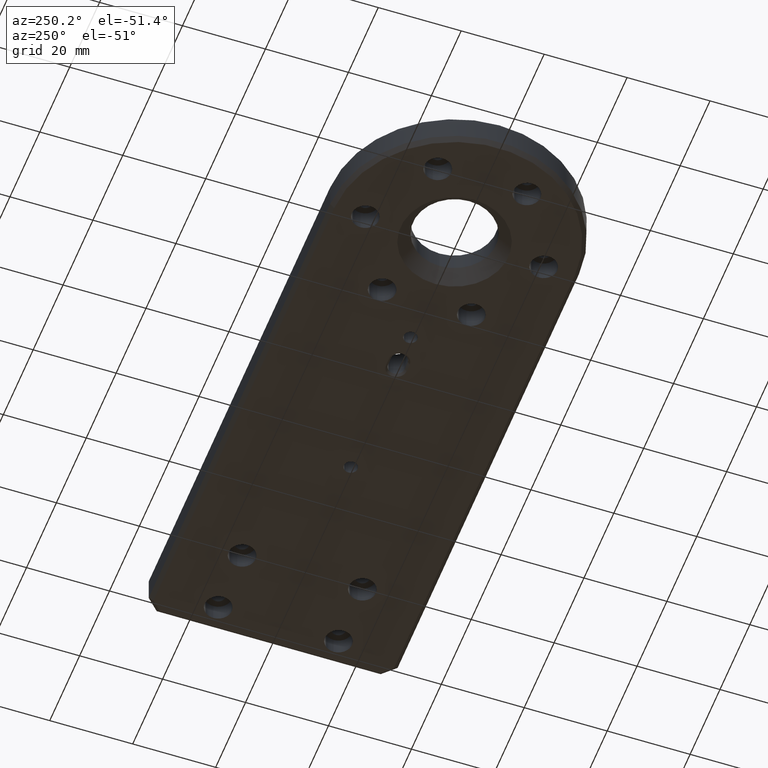
[diagram: clean part render]
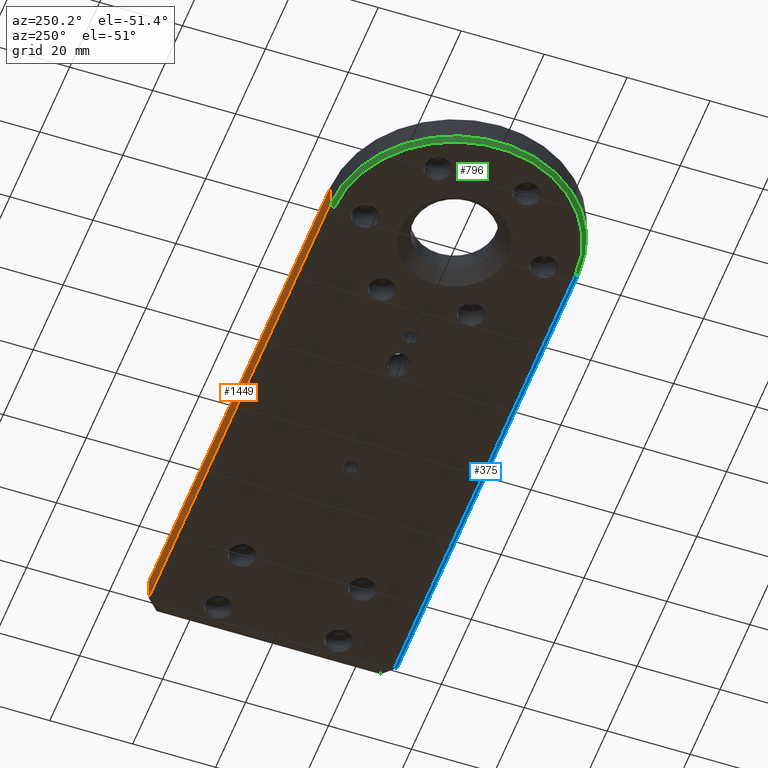
[diagram: same view with three faces highlighted in distinct colors, each labeled with its STEP entity id]
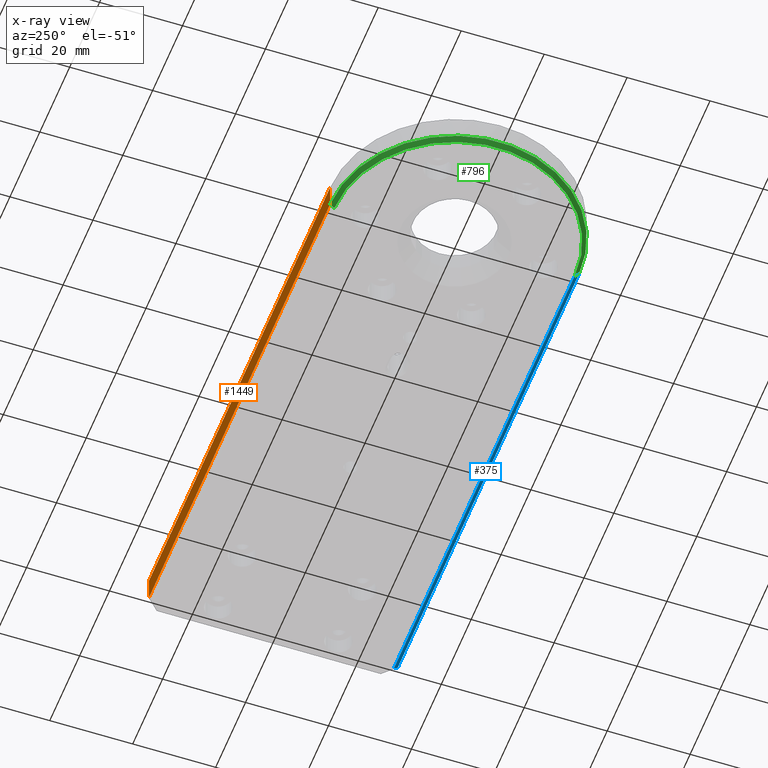
[diagram: x-ray of the same camera — body ghosted, the three highlighted faces saturated]
A machine part, auxiliary view with three faces highlighted in distinct colors.
The next image is the same camera in x-ray (body ghosted, the three faces saturated) — at least one of them is partly hidden behind the body in this view.
Their STEP definitions:

[orange] entity #1449 — the highlighted planar face has unit normal (0, 1, 0).
#435 = ORIENTED_EDGE ( 'NONE', *, *, #2697, .T. ) ;
#528 = DIRECTION ( 'NONE',  ( 1.000000000000000000, 0.0000000000000000000, 0.0000000000000000000 ) ) ;
#617 = ORIENTED_EDGE ( 'NONE', *, *, #3568, .T. ) ;
#993 = CARTESIAN_POINT ( 'NONE',  ( 121.5000000000000000, 30.00000000000000000, -6.999999999999999112 ) ) ;
#1007 = CARTESIAN_POINT ( 'NONE',  ( 121.5000000000000000, 30.00000000000000000, -1.000000000000000888 ) ) ;
#1026 = LINE ( 'NONE', #1903, #3607 ) ;
#1093 = CARTESIAN_POINT ( 'NONE',  ( 1.836970198721029589E-15, 30.00000000000000000, -8.000000000000000000 ) ) ;
#1103 = VECTOR ( 'NONE', #3389, 1000.000000000000000 ) ;
#1449 = ADVANCED_FACE ( 'NONE', ( #1634 ), #2760, .T. ) ;
#1542 = EDGE_CURVE ( 'NONE', #2549, #3305, #2321, .T. ) ;
#1627 = CARTESIAN_POINT ( 'NONE',  ( 1.836970198721029589E-15, 30.00000000000000000, -1.000000000000000888 ) ) ;
#1634 = FACE_OUTER_BOUND ( 'NONE', #2050, .T. ) ;
#1691 = VERTEX_POINT ( 'NONE', #3497 ) ;
#1853 = VECTOR ( 'NONE', #528, 1000.000000000000000 ) ;
#1903 = CARTESIAN_POINT ( 'NONE',  ( 1.836970198721029589E-15, 30.00000000000000000, -6.999999999999999112 ) ) ;
#2050 = EDGE_LOOP ( 'NONE', ( #2065, #617, #3009, #435 ) ) ;
#2065 = ORIENTED_EDGE ( 'NONE', *, *, #2886, .T. ) ;
#2085 = AXIS2_PLACEMENT_3D ( 'NONE', #1093, #2199, #2778 ) ;
#2199 = DIRECTION ( 'NONE',  ( 0.0000000000000000000, 1.000000000000000000, 0.0000000000000000000 ) ) ;
#2223 = CARTESIAN_POINT ( 'NONE',  ( 1.836970198721029589E-15, 30.00000000000000000, -8.000000000000000000 ) ) ;
#2321 = LINE ( 'NONE', #2595, #1103 ) ;
#2549 = VERTEX_POINT ( 'NONE', #1007 ) ;
#2568 = DIRECTION ( 'NONE',  ( 0.0000000000000000000, 0.0000000000000000000, 1.000000000000000000 ) ) ;
#2595 = CARTESIAN_POINT ( 'NONE',  ( 121.5000000000000000, 30.00000000000000000, -8.000000000000000000 ) ) ;
#2697 = EDGE_CURVE ( 'NONE', #3305, #1691, #1026, .T. ) ;
#2704 = DIRECTION ( 'NONE',  ( -1.000000000000000000, 0.0000000000000000000, 0.0000000000000000000 ) ) ;
#2760 = PLANE ( 'NONE',  #2085 ) ;
#2778 = DIRECTION ( 'NONE',  ( 0.0000000000000000000, -0.0000000000000000000, 1.000000000000000000 ) ) ;
#2886 = EDGE_CURVE ( 'NONE', #1691, #3325, #3378, .T. ) ;
#2933 = CARTESIAN_POINT ( 'NONE',  ( 1.836970198721029589E-15, 30.00000000000000000, -1.000000000000000888 ) ) ;
#3009 = ORIENTED_EDGE ( 'NONE', *, *, #1542, .T. ) ;
#3305 = VERTEX_POINT ( 'NONE', #993 ) ;
#3325 = VERTEX_POINT ( 'NONE', #2933 ) ;
#3378 = LINE ( 'NONE', #2223, #3434 ) ;
#3389 = DIRECTION ( 'NONE',  ( 0.0000000000000000000, 0.0000000000000000000, -1.000000000000000000 ) ) ;
#3434 = VECTOR ( 'NONE', #2568, 1000.000000000000000 ) ;
#3497 = CARTESIAN_POINT ( 'NONE',  ( 1.836970198721029589E-15, 30.00000000000000000, -6.999999999999999112 ) ) ;
#3568 = EDGE_CURVE ( 'NONE', #3325, #2549, #3602, .T. ) ;
#3602 = LINE ( 'NONE', #1627, #1853 ) ;
#3607 = VECTOR ( 'NONE', #2704, 1000.000000000000000 ) ;

[blue] entity #375 — the highlighted planar face has unit normal (-0, -0.7071, -0.7071).
#90 = ORIENTED_EDGE ( 'NONE', *, *, #1010, .T. ) ;
#186 = LINE ( 'NONE', #1573, #1268 ) ;
#236 = DIRECTION ( 'NONE',  ( 0.0000000000000000000, 0.7071067811865474617, -0.7071067811865474617 ) ) ;
#303 = CARTESIAN_POINT ( 'NONE',  ( 121.5000000000000142, -30.00000000000000000, -6.999999999999989342 ) ) ;
#375 = ADVANCED_FACE ( 'NONE', ( #1484 ), #2087, .T. ) ;
#590 = EDGE_CURVE ( 'NONE', #1986, #995, #1892, .T. ) ;
#776 = DIRECTION ( 'NONE',  ( -1.000000000000000000, 0.0000000000000000000, 0.0000000000000000000 ) ) ;
#830 = DIRECTION ( 'NONE',  ( 1.000000000000000000, 0.0000000000000000000, -0.0000000000000000000 ) ) ;
#994 = ORIENTED_EDGE ( 'NONE', *, *, #1383, .T. ) ;
#995 = VERTEX_POINT ( 'NONE', #303 ) ;
#1010 = EDGE_CURVE ( 'NONE', #1719, #995, #186, .T. ) ;
#1156 = CARTESIAN_POINT ( 'NONE',  ( -5.510910596163088767E-15, -30.00000000000000000, -6.999999999999999112 ) ) ;
#1268 = VECTOR ( 'NONE', #3326, 1000.000000000000000 ) ;
#1287 = DIRECTION ( 'NONE',  ( -0.0000000000000000000, -0.7071067811865475727, -0.7071067811865475727 ) ) ;
#1352 = VECTOR ( 'NONE', #830, 1000.000000000000000 ) ;
#1376 = CARTESIAN_POINT ( 'NONE',  ( -5.510910596163088767E-15, -30.00000000000000000, -6.999999999999999112 ) ) ;
#1383 = EDGE_CURVE ( 'NONE', #1986, #1510, #2232, .T. ) ;
#1391 = VECTOR ( 'NONE', #776, 1000.000000000000000 ) ;
#1478 = AXIS2_PLACEMENT_3D ( 'NONE', #1524, #1287, #2390 ) ;
#1484 = FACE_OUTER_BOUND ( 'NONE', #1815, .T. ) ;
#1510 = VERTEX_POINT ( 'NONE', #2562 ) ;
#1524 = CARTESIAN_POINT ( 'NONE',  ( 124.5000000000000000, -30.00000000000000000, -6.999999999999999112 ) ) ;
#1560 = CARTESIAN_POINT ( 'NONE',  ( 121.0857864376269220, -28.99999999999999645, -8.000000000000000000 ) ) ;
#1565 = VECTOR ( 'NONE', #236, 1000.000000000000114 ) ;
#1573 = CARTESIAN_POINT ( 'NONE',  ( 126.2303889397497159, -41.42016913364393105, 4.420169133643931048 ) ) ;
#1719 = VERTEX_POINT ( 'NONE', #1560 ) ;
#1815 = EDGE_LOOP ( 'NONE', ( #994, #2758, #90, #3277 ) ) ;
#1829 = EDGE_CURVE ( 'NONE', #1719, #1510, #2500, .T. ) ;
#1892 = LINE ( 'NONE', #2450, #1352 ) ;
#1986 = VERTEX_POINT ( 'NONE', #1156 ) ;
#2087 = PLANE ( 'NONE',  #1478 ) ;
#2232 = LINE ( 'NONE', #1376, #1565 ) ;
#2390 = DIRECTION ( 'NONE',  ( -1.000000000000000000, 0.0000000000000000000, 0.0000000000000000000 ) ) ;
#2450 = CARTESIAN_POINT ( 'NONE',  ( 121.5000000000000142, -30.00000000000000000, -6.999999999999999112 ) ) ;
#2500 = LINE ( 'NONE', #2773, #1391 ) ;
#2562 = CARTESIAN_POINT ( 'NONE',  ( -5.510910596163088767E-15, -28.99999999999999645, -8.000000000000000000 ) ) ;
#2758 = ORIENTED_EDGE ( 'NONE', *, *, #1829, .F. ) ;
#2773 = CARTESIAN_POINT ( 'NONE',  ( -5.510910596163088767E-15, -28.99999999999999645, -8.000000000000000000 ) ) ;
#3277 = ORIENTED_EDGE ( 'NONE', *, *, #590, .F. ) ;
#3326 = DIRECTION ( 'NONE',  ( 0.2810846377148096820, -0.6785983445458492191, 0.6785983445458492191 ) ) ;

[green] entity #796 — the highlighted conical surface has half-angle 45 deg.
#15 = DIRECTION ( 'NONE',  ( -4.329780281177453487E-17, -0.7071067811865474617, -0.7071067811865474617 ) ) ;
#37 = DIRECTION ( 'NONE',  ( -0.0000000000000000000, -0.0000000000000000000, 1.000000000000000000 ) ) ;
#230 = CONICAL_SURFACE ( 'NONE', #3363, 30.00000000000000000, 0.7853981633974482790 ) ;
#236 = DIRECTION ( 'NONE',  ( 0.0000000000000000000, 0.7071067811865474617, -0.7071067811865474617 ) ) ;
#319 = ORIENTED_EDGE ( 'NONE', *, *, #1383, .F. ) ;
#532 = DIRECTION ( 'NONE',  ( -0.0000000000000000000, -0.0000000000000000000, -1.000000000000000000 ) ) ;
#586 = FACE_OUTER_BOUND ( 'NONE', #1180, .T. ) ;
#616 = LINE ( 'NONE', #1418, #2794 ) ;
#796 = ADVANCED_FACE ( 'NONE', ( #586 ), #230, .T. ) ;
#857 = VERTEX_POINT ( 'NONE', #2610 ) ;
#1104 = CIRCLE ( 'NONE', #2258, 28.99999999999999645 ) ;
#1156 = CARTESIAN_POINT ( 'NONE',  ( -5.510910596163088767E-15, -30.00000000000000000, -6.999999999999999112 ) ) ;
#1180 = EDGE_LOOP ( 'NONE', ( #1791, #2934, #319, #3444 ) ) ;
#1376 = CARTESIAN_POINT ( 'NONE',  ( -5.510910596163088767E-15, -30.00000000000000000, -6.999999999999999112 ) ) ;
#1383 = EDGE_CURVE ( 'NONE', #1986, #1510, #2232, .T. ) ;
#1418 = CARTESIAN_POINT ( 'NONE',  ( 1.836970198721029589E-15, 30.00000000000000000, -6.999999999999999112 ) ) ;
#1462 = CARTESIAN_POINT ( 'NONE',  ( 0.0000000000000000000, 0.0000000000000000000, -6.999999999999999112 ) ) ;
#1510 = VERTEX_POINT ( 'NONE', #2562 ) ;
#1565 = VECTOR ( 'NONE', #236, 1000.000000000000114 ) ;
#1612 = DIRECTION ( 'NONE',  ( 1.000000000000000000, 0.0000000000000000000, 0.0000000000000000000 ) ) ;
#1691 = VERTEX_POINT ( 'NONE', #3497 ) ;
#1695 = CARTESIAN_POINT ( 'NONE',  ( 0.0000000000000000000, 0.0000000000000000000, -6.999999999999999112 ) ) ;
#1791 = ORIENTED_EDGE ( 'NONE', *, *, #2770, .T. ) ;
#1986 = VERTEX_POINT ( 'NONE', #1156 ) ;
#2232 = LINE ( 'NONE', #1376, #1565 ) ;
#2258 = AXIS2_PLACEMENT_3D ( 'NONE', #3299, #532, #1612 ) ;
#2562 = CARTESIAN_POINT ( 'NONE',  ( -5.510910596163088767E-15, -28.99999999999999645, -8.000000000000000000 ) ) ;
#2610 = CARTESIAN_POINT ( 'NONE',  ( 1.775737858763662015E-15, 28.99999999999999645, -8.000000000000000000 ) ) ;
#2770 = EDGE_CURVE ( 'NONE', #1691, #857, #616, .T. ) ;
#2794 = VECTOR ( 'NONE', #15, 1000.000000000000114 ) ;
#2821 = DIRECTION ( 'NONE',  ( 1.000000000000000000, 0.0000000000000000000, 0.0000000000000000000 ) ) ;
#2934 = ORIENTED_EDGE ( 'NONE', *, *, #3040, .F. ) ;
#2966 = CIRCLE ( 'NONE', #3545, 30.00000000000000000 ) ;
#3040 = EDGE_CURVE ( 'NONE', #1510, #857, #1104, .T. ) ;
#3221 = EDGE_CURVE ( 'NONE', #1691, #1986, #2966, .T. ) ;
#3299 = CARTESIAN_POINT ( 'NONE',  ( 0.0000000000000000000, 0.0000000000000000000, -8.000000000000000000 ) ) ;
#3363 = AXIS2_PLACEMENT_3D ( 'NONE', #1695, #37, #2821 ) ;
#3366 = DIRECTION ( 'NONE',  ( 1.000000000000000000, 0.0000000000000000000, 0.0000000000000000000 ) ) ;
#3401 = DIRECTION ( 'NONE',  ( -0.0000000000000000000, -0.0000000000000000000, 1.000000000000000000 ) ) ;
#3444 = ORIENTED_EDGE ( 'NONE', *, *, #3221, .F. ) ;
#3497 = CARTESIAN_POINT ( 'NONE',  ( 1.836970198721029589E-15, 30.00000000000000000, -6.999999999999999112 ) ) ;
#3545 = AXIS2_PLACEMENT_3D ( 'NONE', #1462, #3401, #3366 ) ;